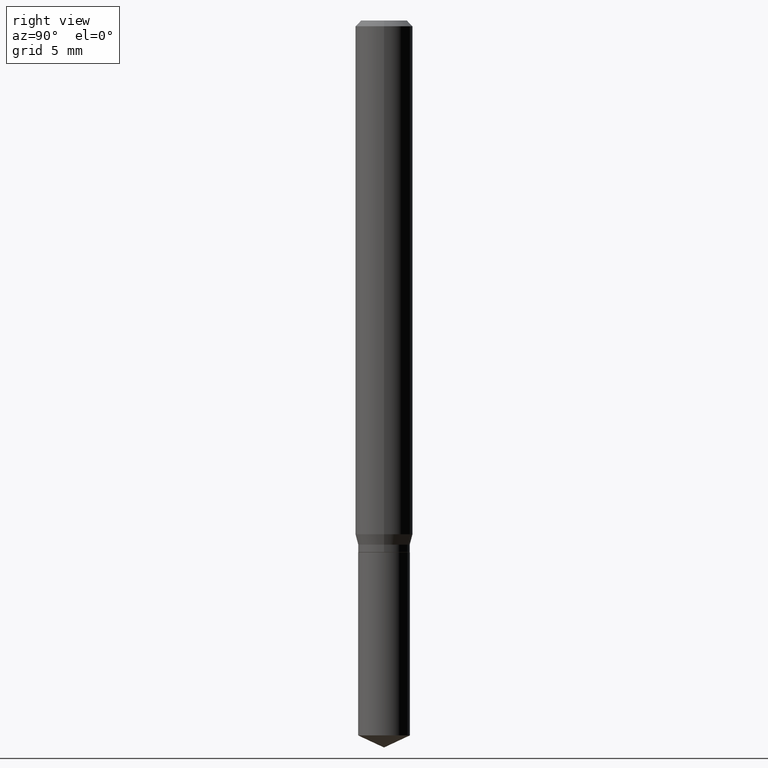
[diagram: clean part render]
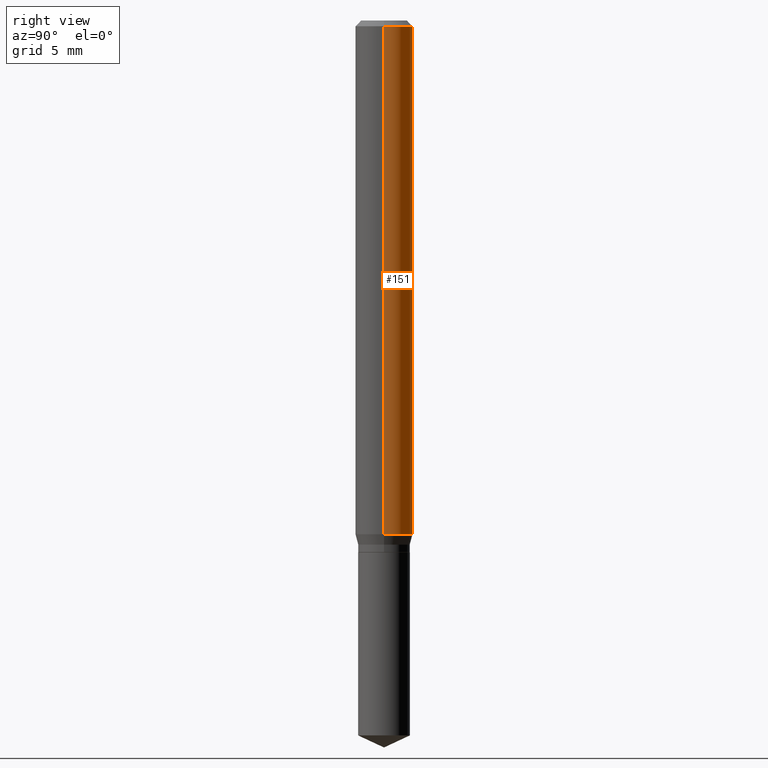
[diagram: same view with one face highlighted and labeled with its STEP entity id]
A machine part, right view. The second image highlights one B-rep face of the part: STEP entity #151.
In plain terms, the highlighted cylindrical surface (edge-blend (fillet) strip) has radius 1.4999 mm, axis along (-0, 0, 1).
Its self-contained STEP definition (entity closure, byte-faithful):
#8 = VERTEX_POINT ( 'NONE', #19 ) ;
#19 = CARTESIAN_POINT ( 'NONE',  ( 0.05904999999999999832, -4.535783407291118600E-16, -0.01181000000000007044 ) ) ;
#26 = CARTESIAN_POINT ( 'NONE',  ( 2.888098660104663766E-31, -4.123439461173779647E-17, -0.01181000000000007044 ) ) ;
#36 = DIRECTION ( 'NONE',  ( -2.445468806185136597E-29, 3.491481338843145583E-15, 1.000000000000000000 ) ) ;
#42 = CARTESIAN_POINT ( 'NONE',  ( -0.05904999999999999832, -1.446686424422506583E-15, -0.01181000000000007044 ) ) ;
#46 = CIRCLE ( 'NONE', #174, 0.05904999999999999832 ) ;
#69 = DIRECTION ( 'NONE',  ( -2.445468806185136597E-29, 3.491481338843145583E-15, 1.000000000000000000 ) ) ;
#73 = EDGE_CURVE ( 'NONE', #8, #309, #46, .T. ) ;
#93 = VERTEX_POINT ( 'NONE', #323 ) ;
#97 = FACE_OUTER_BOUND ( 'NONE', #236, .T. ) ;
#141 = ORIENTED_EDGE ( 'NONE', *, *, #196, .T. ) ;
#151 = ADVANCED_FACE ( 'NONE', ( #97 ), #401, .T. ) ;
#158 = VECTOR ( 'NONE', #428, 39.37007874015748143 ) ;
#174 = AXIS2_PLACEMENT_3D ( 'NONE', #26, #69, #291 ) ;
#182 = CARTESIAN_POINT ( 'NONE',  ( -0.05905000000000006771, 4.195754854663396409E-16, -2.904631170795525045E-30 ) ) ;
#196 = EDGE_CURVE ( 'NONE', #93, #309, #395, .T. ) ;
#204 = CARTESIAN_POINT ( 'NONE',  ( 0.000000000000000000, 0.000000000000000000, 0.000000000000000000 ) ) ;
#220 = CIRCLE ( 'NONE', #422, 0.05905000000000013016 ) ;
#223 = LINE ( 'NONE', #345, #158 ) ;
#229 = ORIENTED_EDGE ( 'NONE', *, *, #400, .F. ) ;
#236 = EDGE_LOOP ( 'NONE', ( #433, #141, #272, #229 ) ) ;
#246 = DIRECTION ( 'NONE',  ( 1.000000000000000000, -6.982962677686265133E-15, 0.000000000000000000 ) ) ;
#264 = AXIS2_PLACEMENT_3D ( 'NONE', #204, #36, #361 ) ;
#272 = ORIENTED_EDGE ( 'NONE', *, *, #73, .F. ) ;
#276 = CARTESIAN_POINT ( 'NONE',  ( 0.05905000000000013016, -4.103633371283330921E-15, -1.057227310396857023 ) ) ;
#282 = DIRECTION ( 'NONE',  ( -2.445468806185136597E-29, 3.491481338843145583E-15, 1.000000000000000000 ) ) ;
#290 = CARTESIAN_POINT ( 'NONE',  ( 2.585416408622524463E-29, -3.691289425165956001E-15, -1.057227310396857023 ) ) ;
#291 = DIRECTION ( 'NONE',  ( 1.000000000000000000, -6.982962677686266711E-15, 0.000000000000000000 ) ) ;
#296 = DIRECTION ( 'NONE',  ( -2.445468806185136877E-29, 3.491481338843145188E-15, 1.000000000000000000 ) ) ;
#309 = VERTEX_POINT ( 'NONE', #42 ) ;
#323 = CARTESIAN_POINT ( 'NONE',  ( -0.05905000000000013016, -3.271713939699615719E-15, -1.057227310396857023 ) ) ;
#345 = CARTESIAN_POINT ( 'NONE',  ( 0.05905000000000006771, -4.123439461173745257E-16, 2.879382386107503723E-30 ) ) ;
#361 = DIRECTION ( 'NONE',  ( 1.000000000000000000, -6.982962677686266711E-15, 4.876176775795936353E-29 ) ) ;
#392 = VERTEX_POINT ( 'NONE', #276 ) ;
#395 = LINE ( 'NONE', #182, #471 ) ;
#400 = EDGE_CURVE ( 'NONE', #392, #8, #223, .T. ) ;
#401 = CYLINDRICAL_SURFACE ( 'NONE', #264, 0.05905000000000006771 ) ;
#422 = AXIS2_PLACEMENT_3D ( 'NONE', #290, #282, #246 ) ;
#428 = DIRECTION ( 'NONE',  ( -2.445468806185136877E-29, 3.491481338843145188E-15, 1.000000000000000000 ) ) ;
#433 = ORIENTED_EDGE ( 'NONE', *, *, #477, .T. ) ;
#471 = VECTOR ( 'NONE', #296, 39.37007874015748143 ) ;
#477 = EDGE_CURVE ( 'NONE', #392, #93, #220, .T. ) ;